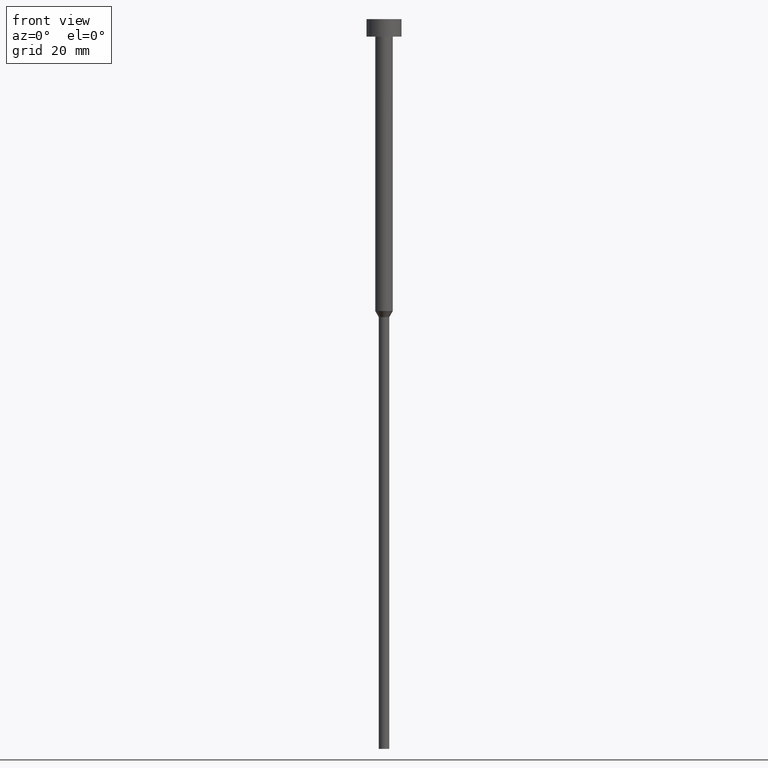
[diagram: clean part render]
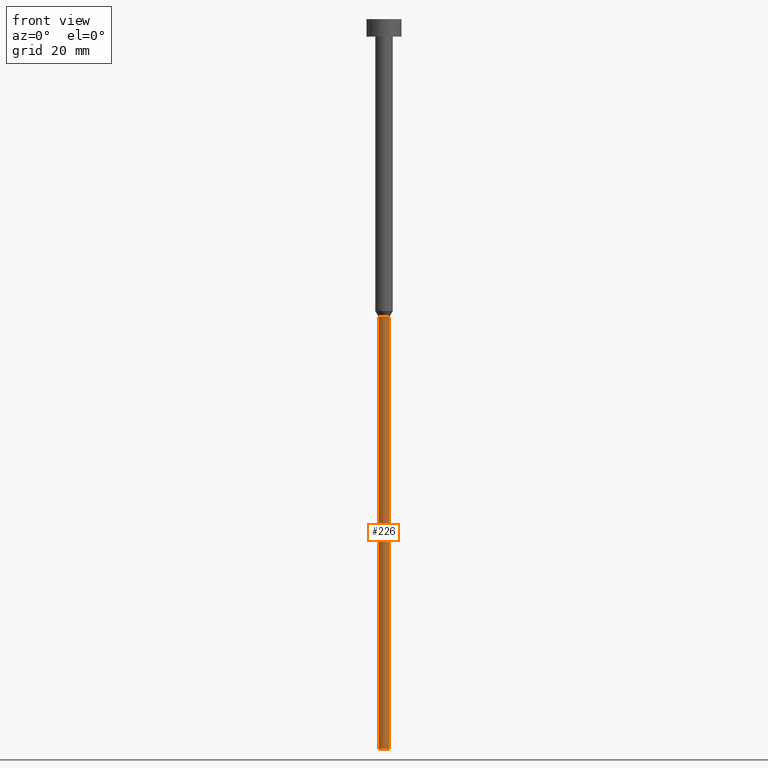
[diagram: same view with one face highlighted and labeled with its STEP entity id]
A machine part, front view. The second image highlights one B-rep face of the part: STEP entity #226.
In plain terms, the highlighted cylindrical surface (edge-blend (fillet) strip) has radius 0.9 mm, axis along (-0, -0, 1).
Its self-contained STEP definition (entity closure, byte-faithful):
#5 = EDGE_CURVE ( 'NONE', #187, #23, #146, .T. ) ;
#9 = EDGE_CURVE ( 'NONE', #71, #23, #315, .T. ) ;
#17 = EDGE_LOOP ( 'NONE', ( #46, #204, #164, #336 ) ) ;
#22 = CARTESIAN_POINT ( 'NONE',  ( -0.9000000000000000222, 1.102182119232617788E-16, -51.03923048454132783 ) ) ;
#23 = VERTEX_POINT ( 'NONE', #190 ) ;
#46 = ORIENTED_EDGE ( 'NONE', *, *, #104, .F. ) ;
#51 = CARTESIAN_POINT ( 'NONE',  ( 0.000000000000000000, 0.000000000000000000, -51.03923048454132783 ) ) ;
#71 = VERTEX_POINT ( 'NONE', #22 ) ;
#104 = EDGE_CURVE ( 'NONE', #110, #71, #132, .T. ) ;
#110 = VERTEX_POINT ( 'NONE', #249 ) ;
#111 = AXIS2_PLACEMENT_3D ( 'NONE', #241, #327, #184 ) ;
#114 = CARTESIAN_POINT ( 'NONE',  ( 0.9000000000000000222, 0.000000000000000000, -125.0000000000000000 ) ) ;
#121 = DIRECTION ( 'NONE',  ( -0.000000000000000000, -0.000000000000000000, 1.000000000000000000 ) ) ;
#132 = LINE ( 'NONE', #253, #340 ) ;
#146 = LINE ( 'NONE', #265, #266 ) ;
#147 = DIRECTION ( 'NONE',  ( 1.000000000000000000, 0.000000000000000000, 0.000000000000000000 ) ) ;
#149 = CARTESIAN_POINT ( 'NONE',  ( 0.000000000000000000, 0.000000000000000000, -125.0000000000000000 ) ) ;
#164 = ORIENTED_EDGE ( 'NONE', *, *, #5, .T. ) ;
#175 = AXIS2_PLACEMENT_3D ( 'NONE', #149, #293, #147 ) ;
#184 = DIRECTION ( 'NONE',  ( 1.000000000000000000, 0.000000000000000000, 0.000000000000000000 ) ) ;
#187 = VERTEX_POINT ( 'NONE', #114 ) ;
#190 = CARTESIAN_POINT ( 'NONE',  ( 0.9000000000000000222, 0.000000000000000000, -51.03923048454132783 ) ) ;
#200 = EDGE_CURVE ( 'NONE', #110, #187, #295, .T. ) ;
#204 = ORIENTED_EDGE ( 'NONE', *, *, #200, .T. ) ;
#215 = DIRECTION ( 'NONE',  ( 1.000000000000000000, 0.000000000000000000, 0.000000000000000000 ) ) ;
#226 = ADVANCED_FACE ( 'NONE', ( #232 ), #344, .T. ) ;
#232 = FACE_OUTER_BOUND ( 'NONE', #17, .T. ) ;
#241 = CARTESIAN_POINT ( 'NONE',  ( 0.000000000000000000, 0.000000000000000000, 0.000000000000000000 ) ) ;
#244 = DIRECTION ( 'NONE',  ( -0.000000000000000000, -0.000000000000000000, 1.000000000000000000 ) ) ;
#249 = CARTESIAN_POINT ( 'NONE',  ( -0.9000000000000000222, 1.102182119232617788E-16, -125.0000000000000000 ) ) ;
#253 = CARTESIAN_POINT ( 'NONE',  ( -0.9000000000000000222, 1.102182119232617788E-16, 0.000000000000000000 ) ) ;
#259 = AXIS2_PLACEMENT_3D ( 'NONE', #51, #269, #215 ) ;
#265 = CARTESIAN_POINT ( 'NONE',  ( 0.9000000000000000222, 0.000000000000000000, 0.000000000000000000 ) ) ;
#266 = VECTOR ( 'NONE', #121, 1000.000000000000000 ) ;
#269 = DIRECTION ( 'NONE',  ( -0.000000000000000000, -0.000000000000000000, 1.000000000000000000 ) ) ;
#293 = DIRECTION ( 'NONE',  ( -0.000000000000000000, -0.000000000000000000, 1.000000000000000000 ) ) ;
#295 = CIRCLE ( 'NONE', #175, 0.9000000000000000222 ) ;
#315 = CIRCLE ( 'NONE', #259, 0.9000000000000000222 ) ;
#327 = DIRECTION ( 'NONE',  ( -0.000000000000000000, -0.000000000000000000, 1.000000000000000000 ) ) ;
#336 = ORIENTED_EDGE ( 'NONE', *, *, #9, .F. ) ;
#340 = VECTOR ( 'NONE', #244, 1000.000000000000000 ) ;
#344 = CYLINDRICAL_SURFACE ( 'NONE', #111, 0.9000000000000000222 ) ;